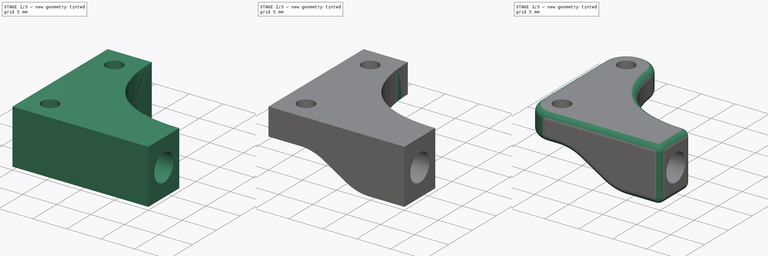
[diagram: build sequence overview — one tinted view per stage of 3, left to right]
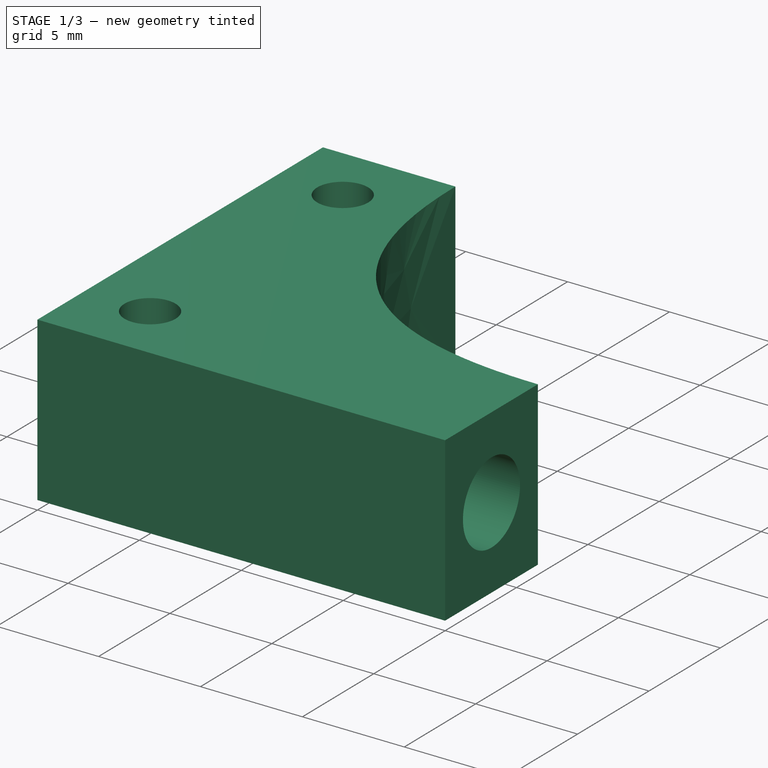
[diagram: stage 1 of 3 — iso view after this stage's code; geometry added in this stage tinted green]
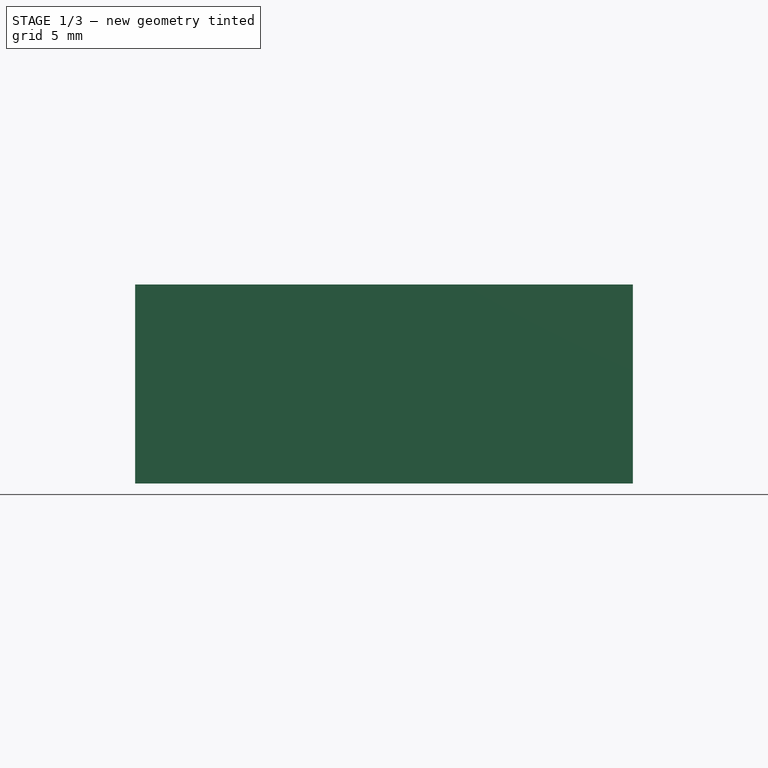
[diagram: stage 1 of 3 — front view after this stage's code; geometry added in this stage tinted green]
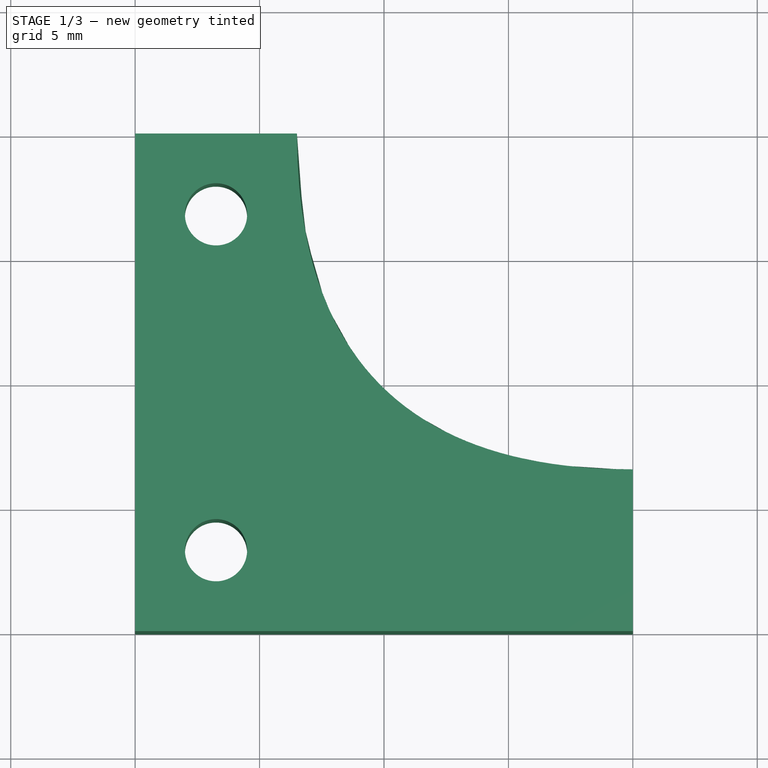
[diagram: stage 1 of 3 — top view after this stage's code; geometry added in this stage tinted green]
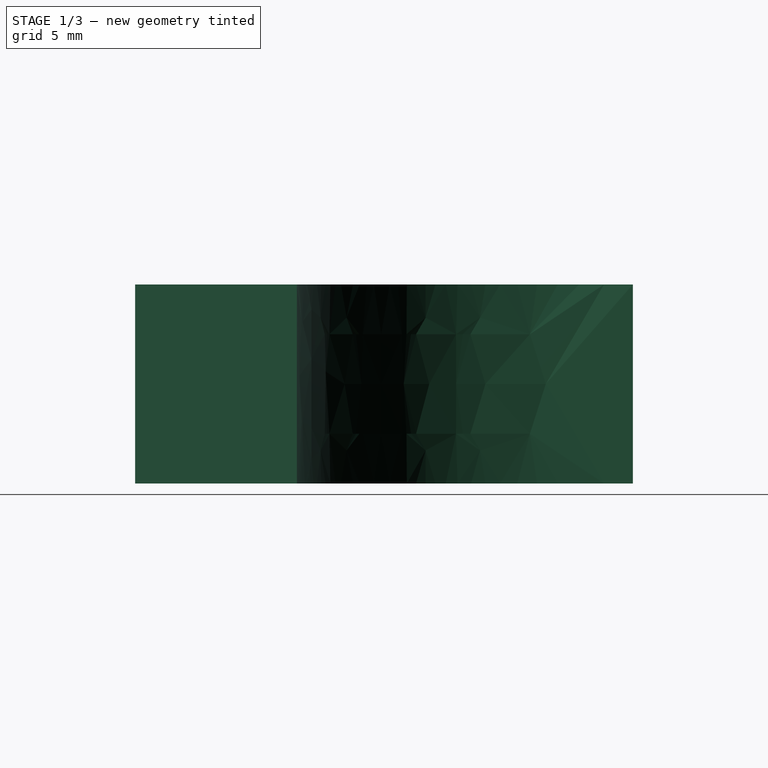
[diagram: stage 1 of 3 — right view after this stage's code; geometry added in this stage tinted green]
FCSTD DOCUMENT  (FreeCAD 1.0R39285 (Git))
Label: steering-brackets
License: All rights reserved
LicenseURL: http://en.wikipedia.org/wiki/All_rights_reserved
objects: Sketcher::SketchObject×3, Spreadsheet::Sheet×3, PartDesign::Fillet×3, PartDesign::Pocket×2, PartDesign::Pad×1, PartDesign::Body×1
note: 25 computed .brp shape members not serialized (recipe doc carries the construction recipe); baked Part::Feature solids carry a one-line shape summary decoded from their .brp

FEATURE [Sketcher::SketchObject] Sketch  label="AngleBracketSketch"
  ArcFitTolerance = 0
  AttachmentSupport = -> [XY_Plane]
  FullyConstrained = true
  MakeInternals = false
  MapMode = 5
  expr: .Constraints.bolt_inset = <<Measurements>>.AngleBracketBoltInset
  expr: .Constraints.bracket_width = <<Measurements>>.AngleBracketArmLengthXY
  expr: .Constraints.height = <<Measurements>>.AngleBracketArmLengthXY
  expr: .Constraints.mount_offset_x = <<Measurements>>.AngleBracketBoltInset
  expr: .Constraints.mount_offset_y = <<Measurements>>.AngleBracketBoltInset
  expr: .Constraints.shaft_connector_width = <<Measurements>>.AngleBracketArmThicknessXY
  expr: .Constraints.spline_control_0_x = <<Measurements>>.AngleBracketArmThicknessXY
  expr: .Constraints.spline_control_0_y = <<Measurements>>.AngleBracketArmThicknessXY
  expr: .Constraints.tie_rod_bracing_thickness = <<Measurements>>.AngleBracketArmThicknessXY
  expr: Constraints[27] = <<Measurements>>.AngleBracketBoltHoleDiameter
  expr: Constraints[28] = <<Measurements>>.AngleBracketBoltHoleDiameter
  expr: Constraints[5] = <<Measurements>>.AngleBracketBoltInset
  sketch-geometry (12):
    g0: LineSegment StartX=6.5 StartY=20 StartZ=0 EndX=0 EndY=20 EndZ=0
    g1: LineSegment StartX=0 StartY=20 StartZ=0 EndX=0 EndY=0 EndZ=0
    g2: Circle CenterX=3.25 CenterY=16.75 CenterZ=0 NormalX=0 NormalY=0 NormalZ=1 AngleXU=0 Radius=1.25
    g3: Circle CenterX=3.25 CenterY=3.25 CenterZ=0 NormalX=0 NormalY=0 NormalZ=1 AngleXU=0 Radius=1.25
    g4: LineSegment StartX=20 StartY=0 StartZ=0 EndX=20 EndY=6.5 EndZ=0
    g5: LineSegment StartX=0 StartY=0 StartZ=0 EndX=20 EndY=0 EndZ=0
    g6: Circle [constr] CenterX=6.5 CenterY=20 CenterZ=0 NormalX=0 NormalY=0 NormalZ=1 AngleXU=0 Radius=1
    g7: Circle [constr] CenterX=6.5 CenterY=6.5 CenterZ=0 NormalX=0 NormalY=0 NormalZ=1 AngleXU=0 Radius=1
    g8: Circle [constr] CenterX=20 CenterY=6.5 CenterZ=0 NormalX=0 NormalY=0 NormalZ=1 AngleXU=0 Radius=1
    g9: BSplineCurve PolesCount=3 KnotsCount=2 Degree=2 IsPeriodic=0
    g10: GeomPoint [constr] X=6.5 Y=20 Z=0
    g11: GeomPoint [constr] X=20 Y=6.5 Z=0
  constraints (30):
    c: Coincident(g0,g1)  'point_1'
    c: Horizontal(g0)  'perimeter_1'
    c: Vertical(g1)  'perimeter_0'
    c: Distance(g1) = 20  'height'
    c: Distance(g2,g1) = 2  'bolt_inset'
    c: Distance(g2,g0) = 2
    c: Distance(g3,g1) = 2  'mount_offset_x'
    c: Vertical(g4)
    c: Coincident(g5,g1)  'point_0'
    c: Coincident(g5,g4)  'point_4'
    c: Horizontal(g5)  'width'
    c: Distance(g3,g5) = 2  'mount_offset_y'
    c: Distance(g0) = 6.5  'tie_rod_bracing_thickness'
    c: Distance(g4) = 6.5  'shaft_connector_width'
    c: Weight(g6) = 1
    c: Coincident(g9,g0)  'point_2'
    c: Equal(g6,g7)  'spline_control_0'
    c: Equal(g6,g8)  'spline_control_1'
    c: Coincident(g9,g4)  'point_3'
    c: InternalAlignment(g6,g9)
    c: InternalAlignment(g7,g9)
    c: InternalAlignment(g8,g9)
    c: InternalAlignment(g10,g9)
    c: InternalAlignment(g11,g9)
    c: Distance(g7,g5) = 6.5  'spline_control_0_y'
    c: Distance(g7,g1) = 6.5  'spline_control_0_x'
    c: Distance(g5) = 20  'bracket_width'
    c: Diameter(g3) = 2.5
    c: Diameter(g2) = 2.5
    c: Coincident(g1,g-1)
FEATURE [Spreadsheet::Sheet] Spreadsheet  label="Measurements"
  cells = A1='BoltHolePrintingMarginSmall; B1(BoltHolePrintingMarginSmall)==0.5 mm; A2='AngleBracketArmLengthXY; B2(AngleBracketArmLengthXY)==20 mm; A3='AngleBracketArmThicknessXY; B3(AngleBracketArmThicknessXY)==AngleBracketBoltHoleDiameter + 2 * ShaftMountBaseMargin; A4='AngleBracketDepthZ; B4(AngleBracketDepthZ)==ShaftDiameter + 2 * ShaftMountBaseMargin; A5='ShaftMountBaseMargin; B5(ShaftMountBaseMargin)==2 mm; A6='WheelShaftHoleLength; B6(WheelShaftHoleLength)==25 mm; A7='ShaftBoltLength; B7(ShaftBoltLength)==35 mm; A8='ShaftBoltMargin; B8(ShaftBoltMargin)==ShaftBoltLength - WheelShaftHoleLength; A9='AngleBracketBoltSize; B9(AngleBracketBoltSize)==2 mm; A10='AngleBracketBoltHoleDiameter; B10(AngleBracketBoltHoleDiameter)==AngleBracketBoltSize + BoltHolePrintingMarginSmall; A11='AngleBracketBoltInset; B11(AngleBracketBoltInset)==2 mm; A12='ShaftDiameter; B12(ShaftDiameter)==4 mm; A13='ShaftFullLength; B13(ShaftFullLength)==WheelShaftHoleLength + ShaftBoltLength
FEATURE [PartDesign::Pad] Pad  label="AngleBracketPad"
  Direction = (0,0,1)
  Length = 8
  Length2 = 10
  Profile = -> Sketch
  ReferenceAxis = -> Sketch [N_Axis]
  Suppressed = false
  Type = 0
  expr: Length = <<Measurements>>.AngleBracketDepthZ
FEATURE [Sketcher::SketchObject] Sketch001  label="ShaftThreadedHoleSketch"
  ArcFitTolerance = 1e-06
  AttachmentSupport = -> [Pad]
  FullyConstrained = true
  MakeInternals = false
  MapMode = 5
  Placement = pos=(20,0,0) rot=(0.57735,0.57735,0.57735;2.0944rad)
  expr: Constraints[0] = <<Measurements>>.AngleBracketArmThicknessXY / 2
  expr: Constraints[1] = <<Measurements>>.ShaftDiameter / 2 + <<Measurements>>.ShaftMountBaseMargin
  expr: Constraints[2] = <<Measurements>>.ShaftDiameter
  sketch-geometry (1):
    g0: Circle CenterX=3.25 CenterY=4 CenterZ=0 NormalX=0 NormalY=0 NormalZ=1 AngleXU=0 Radius=2
  constraints (3):
    c: DistanceX(g-1,g0) = 3.25
    c: DistanceY(g-1,g0) = 4
    c: Diameter(g0) = 4
FEATURE [PartDesign::Pocket] Pocket
  BaseFeature = -> Pad
  Direction = (-1,0,0)
  Length = 10
  Length2 = 5
  Profile = -> Sketch001
  ReferenceAxis = -> Sketch001 [N_Axis]
  Suppressed = false
  Type = 0
  expr: Length = <<Measurements>>.ShaftBoltMargin
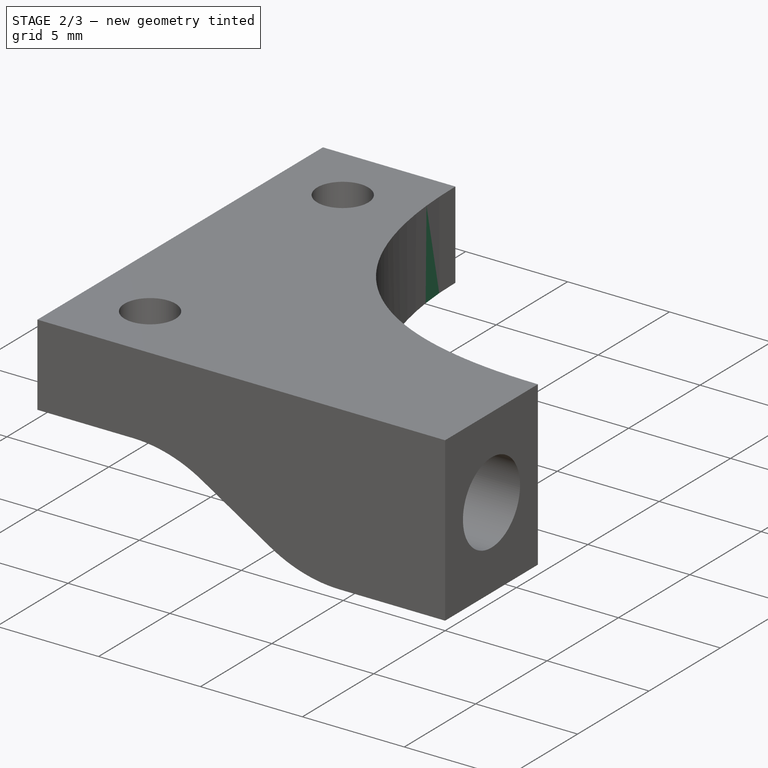
[diagram: stage 2 of 3 — iso view after this stage's code; geometry added in this stage tinted green]
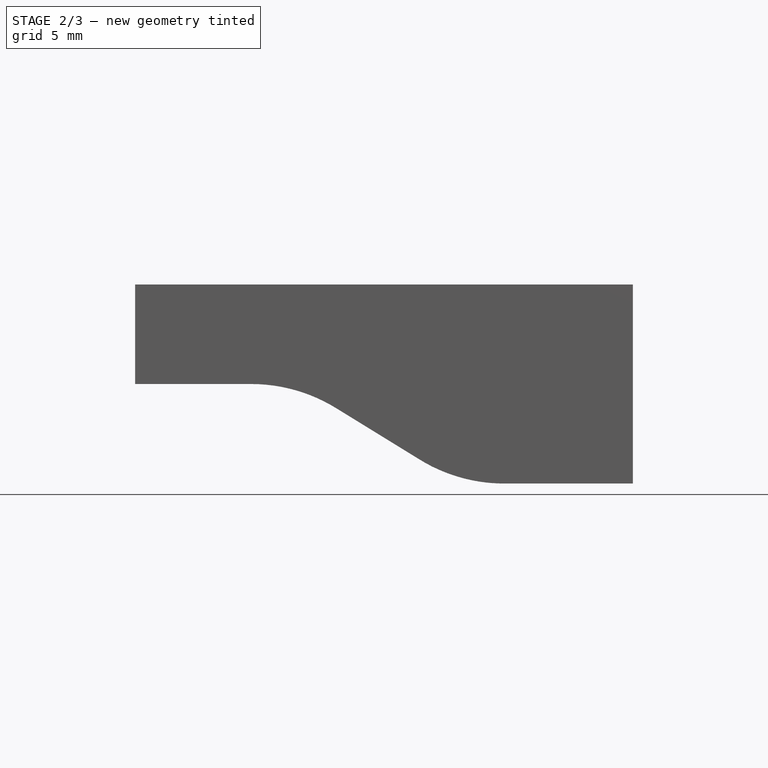
[diagram: stage 2 of 3 — front view after this stage's code; geometry added in this stage tinted green]
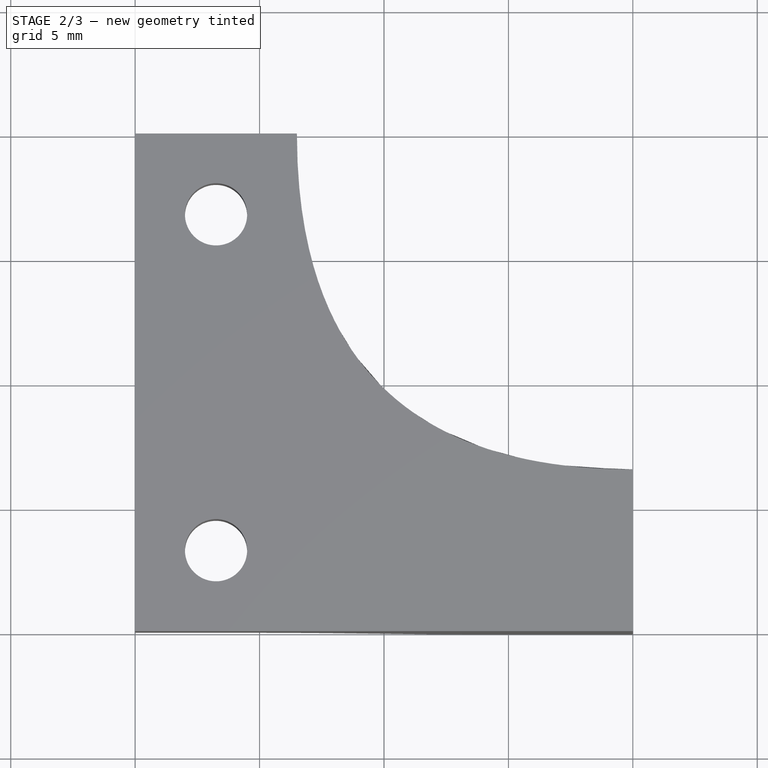
[diagram: stage 2 of 3 — top view after this stage's code; geometry added in this stage tinted green]
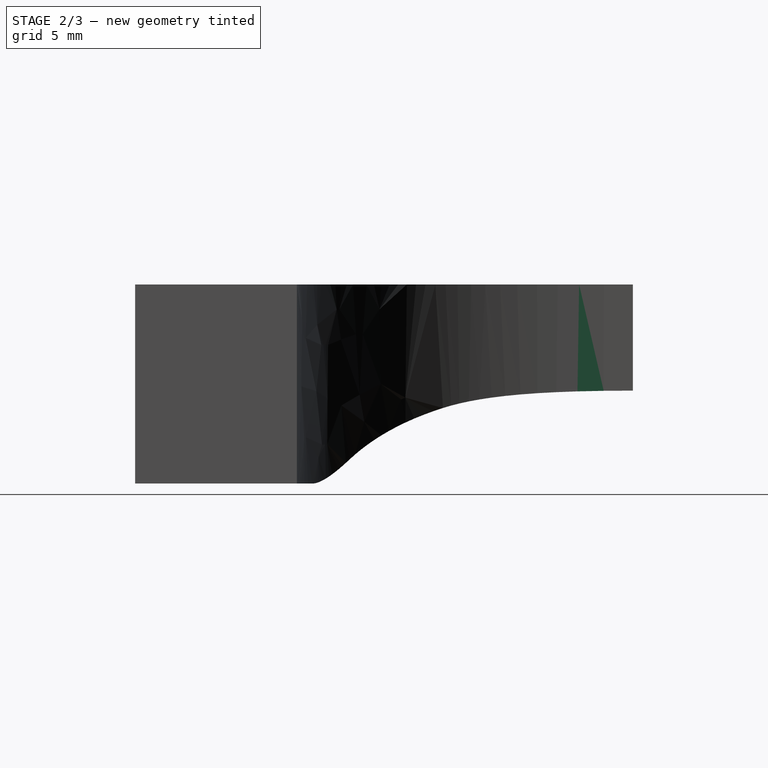
[diagram: stage 2 of 3 — right view after this stage's code; geometry added in this stage tinted green]
FEATURE [Sketcher::SketchObject] Sketch002  label="AngleBracketTrimSketch"
  ArcFitTolerance = 1e-06
  AttachmentSupport = -> [Pocket]
  FullyConstrained = true
  MakeInternals = false
  MapMode = 5
  Placement = pos=(0,0,0) rot=(1,0,0;1.5708rad)
  expr: Constraints[6] = <<Measurements>>.AngleBracketDepthZ / -2
  expr: Constraints[7] = <<Measurements>>.AngleBracketDepthZ / 2
  expr: Constraints[8] = <<Measurements>>.AngleBracketArmThicknessXY
  expr: Constraints[9] = <<Measurements>>.AngleBracketArmThicknessXY * 2
  sketch-geometry (4):
    g0: LineSegment StartX=0 StartY=0 StartZ=0 EndX=0 EndY=4 EndZ=0
    g1: LineSegment StartX=0 StartY=4 StartZ=0 EndX=6.5 EndY=4 EndZ=0
    g2: LineSegment StartX=13 StartY=0 StartZ=0 EndX=0 EndY=0 EndZ=0
    g3: LineSegment StartX=6.5 StartY=4 StartZ=0 EndX=13 EndY=0 EndZ=0
  constraints (12):
    c: Coincident(g0,g1)
    c: Coincident(g2,g0)
    c: Vertical(g0)
    c: Horizontal(g1)
    c: Horizontal(g2)
    c: PointOnObject(g0,g-2)
    c: DistanceY(g0,g0) = -4
    c: DistanceY(g-1,g0) = 4
    c: DistanceX(g1,g1) = 6.5
    c: DistanceX(g2,g2) = 13
    c: Coincident(g3,g1)
    c: Coincident(g3,g2)
FEATURE [PartDesign::Pocket] Pocket001  label="AngleBracketTrim"
  BaseFeature = -> Pocket
  Direction = (0,1,-2e-16)
  Length = 20
  Length2 = 5
  Profile = -> Sketch002
  ReferenceAxis = -> Sketch002 [N_Axis]
  Suppressed = false
  Type = 0
  expr: Length = <<Measurements>>.AngleBracketArmLengthXY
FEATURE [PartDesign::Fillet] Fillet
  Base = -> Pocket001 [Edge23,Edge7]
  BaseFeature = -> Pocket001
  Radius = 6.5
  Refine = true
  SupportTransform = false
  Suppressed = false
  UseAllEdges = false
  expr: Radius = <<Measurements>>.AngleBracketArmThicknessXY
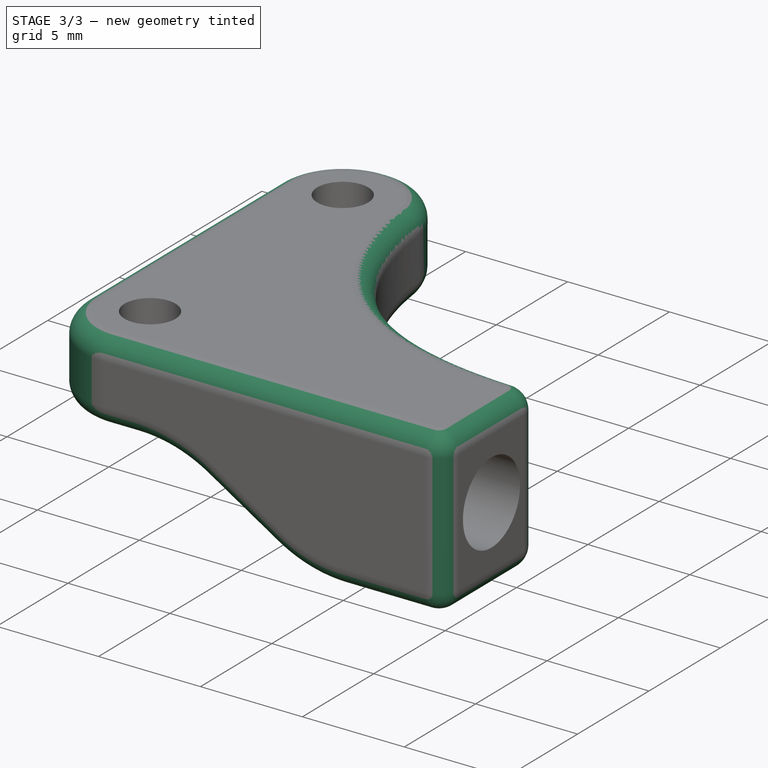
[diagram: stage 3 of 3 — iso view after this stage's code; geometry added in this stage tinted green]
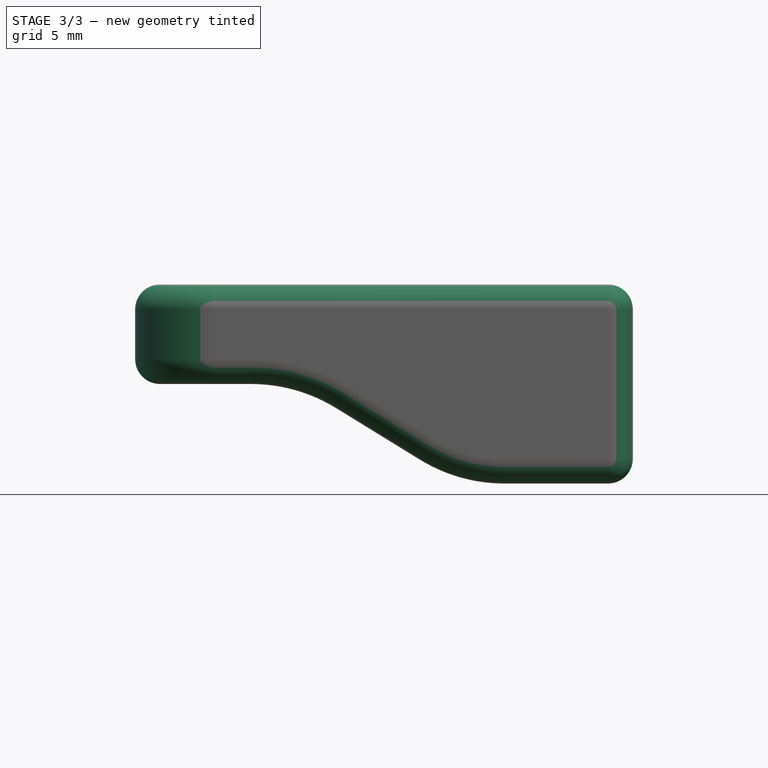
[diagram: stage 3 of 3 — front view after this stage's code; geometry added in this stage tinted green]
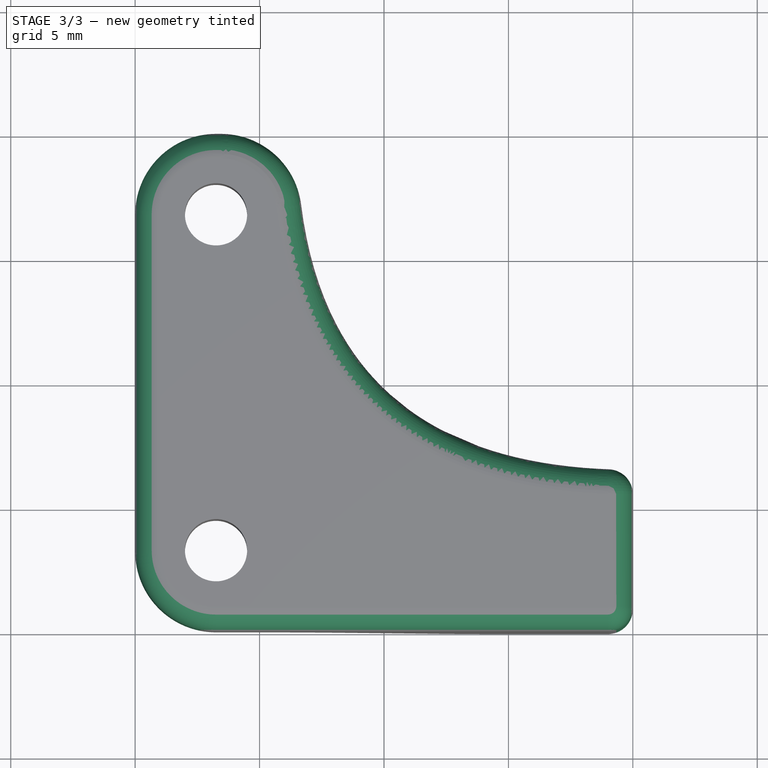
[diagram: stage 3 of 3 — top view after this stage's code; geometry added in this stage tinted green]
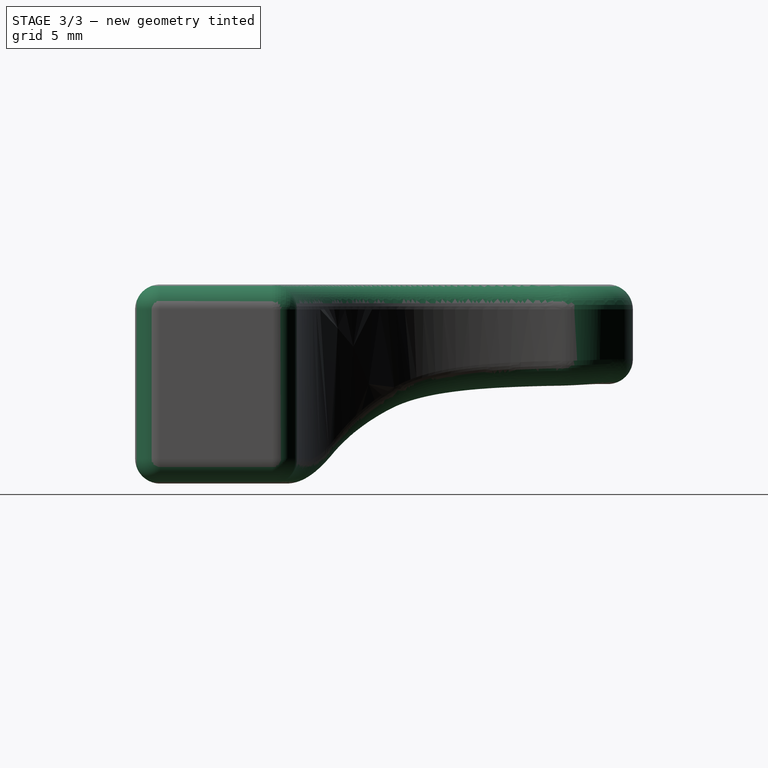
[diagram: stage 3 of 3 — right view after this stage's code; geometry added in this stage tinted green]
FEATURE [PartDesign::Fillet] Fillet001
  Base = -> Fillet [Edge3,Edge4,Edge14]
  BaseFeature = -> Fillet
  Radius = 3.25
  SupportTransform = false
  Suppressed = false
  UseAllEdges = false
  expr: Radius = <<Measurements>>.AngleBracketArmThicknessXY / 2
FEATURE [PartDesign::Fillet] Fillet002
  Base = -> Fillet001 [Edge38,Edge40,Edge28,Edge20,Edge18,Edge22,Edge30,Edge39]
  BaseFeature = -> Fillet001
  Radius = 1
  SupportTransform = false
  Suppressed = false
  UseAllEdges = false
FEATURE [PartDesign::Body] Body
  AllowCompound = false
  Group = -> [Sketch,Pad,Sketch001,Pocket,Sketch002,Pocket001,Fillet,Fillet001,Fillet002]
  Origin = -> Origin
  Tip = -> Fillet002
FEATURE [Spreadsheet::Sheet] Spreadsheet001  label="Parts"
  cells = A1='MountingBoltSize; B1(MountingBoltSize)==2 mm; A2='MountingBoltHoleDiameter
FEATURE [Spreadsheet::Sheet] Spreadsheet002  label="Constants"
  cells = A1='BoltHoleDiameterPrintingMargin; B1(BoltHoleDiameterPrintingMargin)==0.5 mm
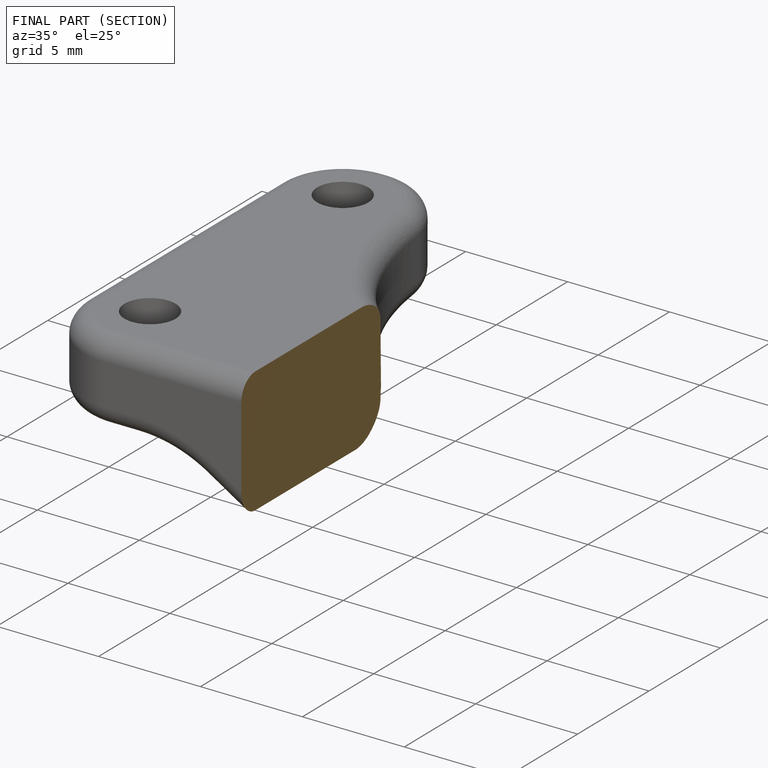
[diagram: finished part — half-section view (interior)]
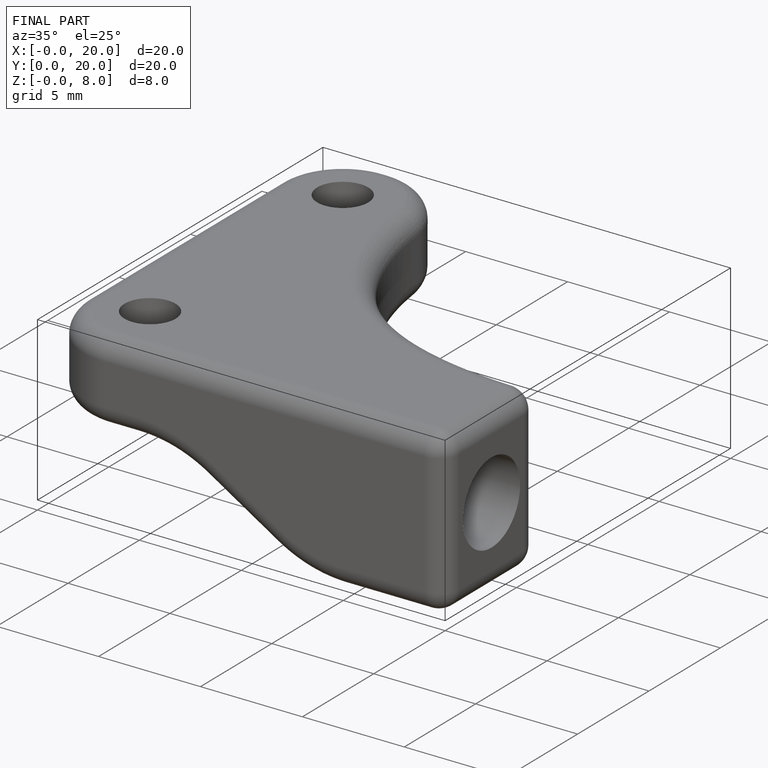
[diagram: finished part — iso view with bounding-box wireframe]
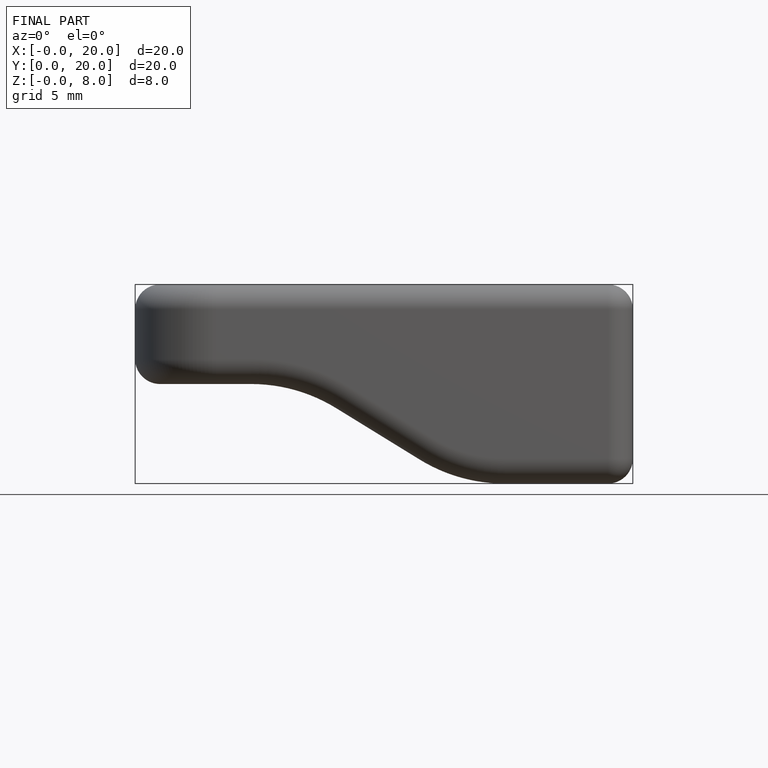
[diagram: finished part — front view with bounding-box wireframe]
